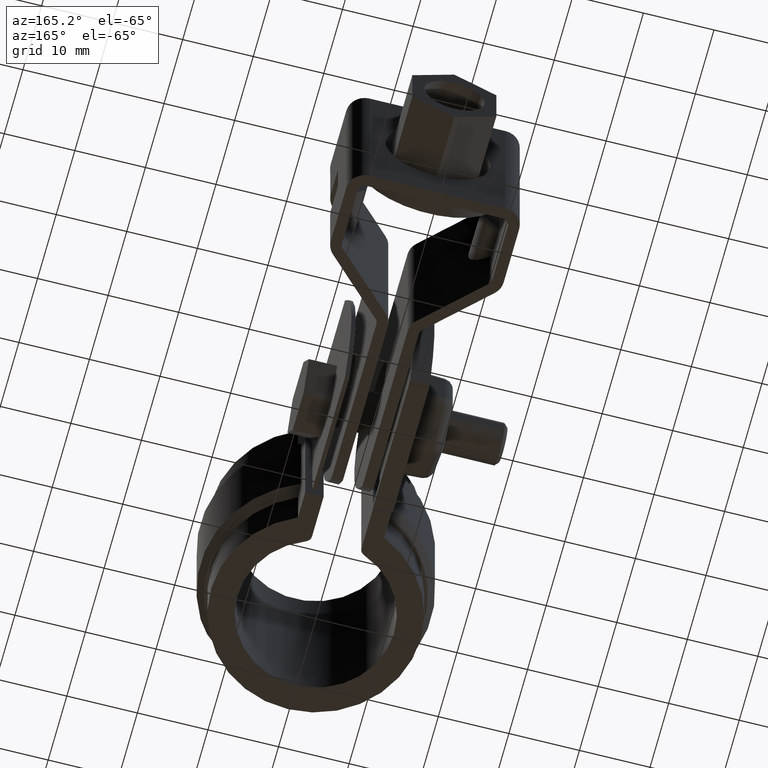
[diagram: clean part render]
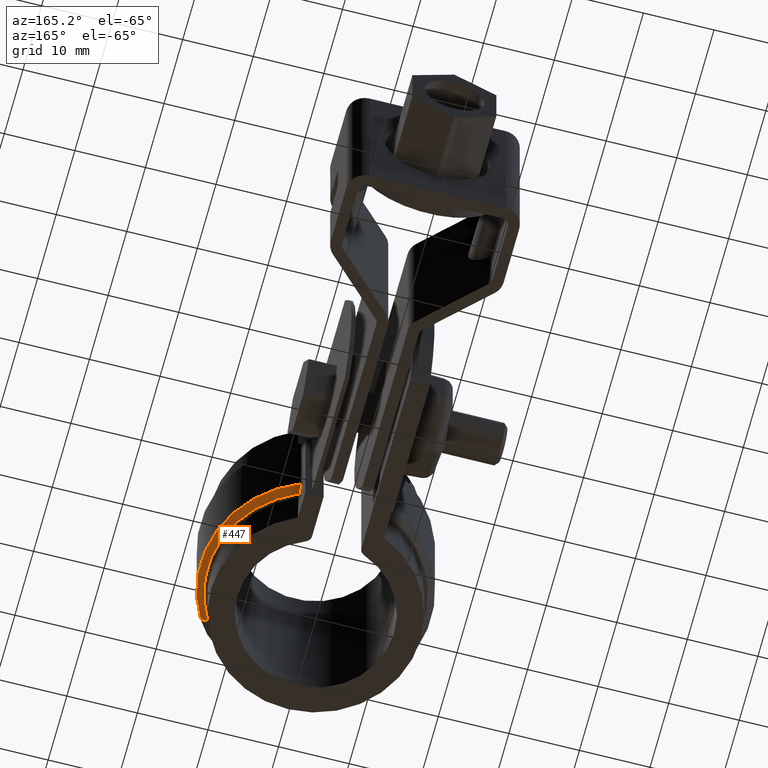
[diagram: same view with one face highlighted and labeled with its STEP entity id]
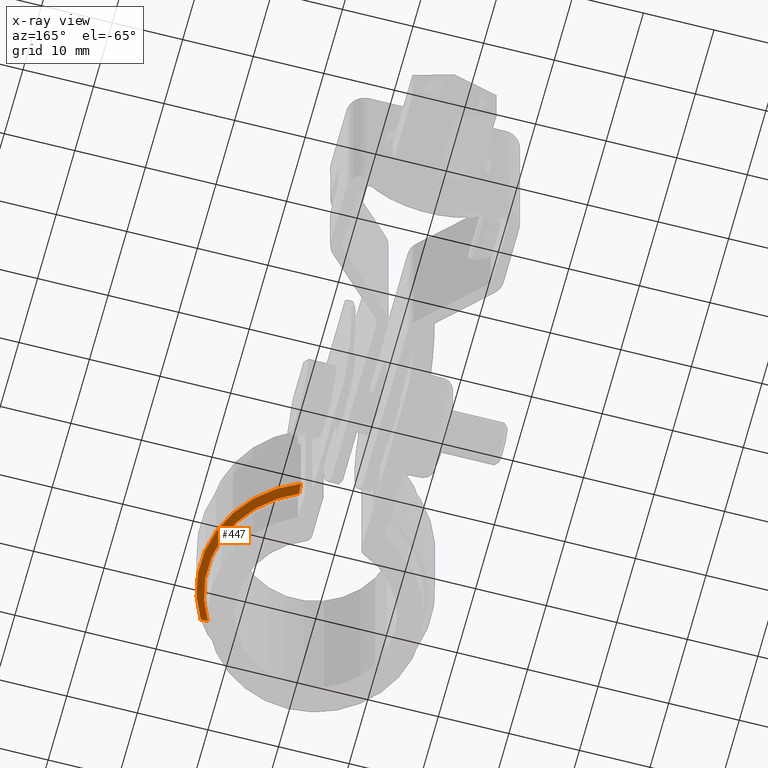
[diagram: x-ray of the same camera — body ghosted, the highlighted face saturated]
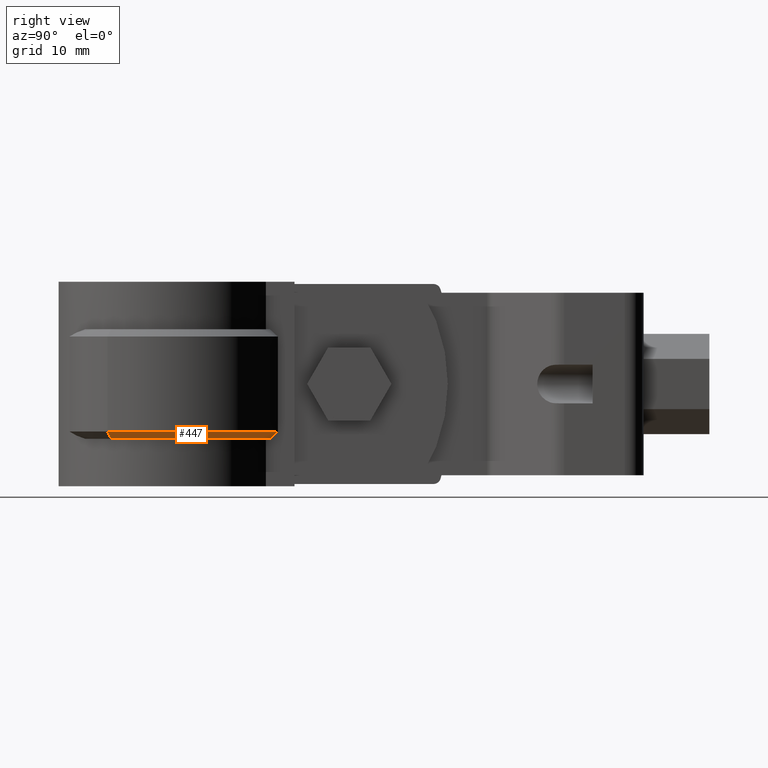
[diagram: same view with one face highlighted and labeled with its STEP entity id]
A machine part, auxiliary view. The second image highlights one B-rep face of the part: STEP entity #447.
The next image is the same camera in x-ray: the body ghosted, the highlighted face saturated — about 0% of this face is hidden behind the body in this view.
A second angle (right view) of the same face is appended — the face is thin or edge-on in the first view.
In plain terms, the highlighted conical surface has half-angle 45 deg.
Its self-contained STEP definition (entity closure, byte-faithful):
#447 = ADVANCED_FACE( '', ( #865 ), #866, .T. );
#865 = FACE_OUTER_BOUND( '', #1949, .T. );
#866 = CONICAL_SURFACE( '', #1950, 15.3550000000000, 0.785398163397449 );
#1949 = EDGE_LOOP( '', ( #4306, #4307, #4308, #4309 ) );
#1950 = AXIS2_PLACEMENT_3D( '', #4310, #4311, #4312 );
#4306 = ORIENTED_EDGE( '', *, *, #6595, .F. );
#4307 = ORIENTED_EDGE( '', *, *, #6596, .F. );
#4308 = ORIENTED_EDGE( '', *, *, #6597, .F. );
#4309 = ORIENTED_EDGE( '', *, *, #6598, .F. );
#4310 = CARTESIAN_POINT( '', ( 0.000000000000000, 0.000000000000000, -20.0000000000000 ) );
#4311 = DIRECTION( '', ( 0.000000000000000, 0.000000000000000, 1.00000000000000 ) );
#4312 = DIRECTION( '', ( 1.00000000000000, 0.000000000000000, 0.000000000000000 ) );
#6595 = EDGE_CURVE( '', #7717, #7718, #7719, .T. );
#6596 = EDGE_CURVE( '', #7720, #7717, #7721, .T. );
#6597 = EDGE_CURVE( '', #7722, #7720, #7723, .T. );
#6598 = EDGE_CURVE( '', #7718, #7722, #7724, .F. );
#7717 = VERTEX_POINT( '', #10695 );
#7718 = VERTEX_POINT( '', #10696 );
#7719 = B_SPLINE_CURVE_WITH_KNOTS( '', 3, ( #10697, #10698, #10699, #10700 ), .UNSPECIFIED., .F., .F., ( 4, 4 ), ( 0.000000000000000, 0.00147444161299851 ), .UNSPECIFIED. );
#7720 = VERTEX_POINT( '', #10701 );
#7721 = CIRCLE( '', #10702, 16.3550000000000 );
#7722 = VERTEX_POINT( '', #10703 );
#7723 = LINE( '', #10704, #10705 );
#7724 = CIRCLE( '', #10706, 15.3550000000000 );
#10695 = CARTESIAN_POINT( '', ( 6.10000000000001, 15.1748484341690, -19.0000000000000 ) );
#10696 = CARTESIAN_POINT( '', ( 6.10000000000001, 14.0913457483663, -20.0000000000000 ) );
#10697 = CARTESIAN_POINT( '', ( 6.10000000000001, 15.1748484341690, -19.0000000000000 ) );
#10698 = CARTESIAN_POINT( '', ( 6.10000000000001, 14.8145635994486, -19.3342872369313 ) );
#10699 = CARTESIAN_POINT( '', ( 6.10000000000001, 14.4534554887810, -19.6676904232475 ) );
#10700 = CARTESIAN_POINT( '', ( 6.10000000000001, 14.0913457483663, -20.0000000000000 ) );
#10701 = CARTESIAN_POINT( '', ( 14.1597412067696, -8.18460469157254, -19.0000000000000 ) );
#10702 = AXIS2_PLACEMENT_3D( '', #12622, #12623, #12624 );
#10703 = CARTESIAN_POINT( '', ( 13.2939667520604, -7.68417028670721, -20.0000000000000 ) );
#10704 = CARTESIAN_POINT( '', ( 13.2939667520604, -7.68417028670721, -20.0000000000000 ) );
#10705 = VECTOR( '', #12625, 1000.00000000000 );
#10706 = AXIS2_PLACEMENT_3D( '', #12626, #12627, #12628 );
#12622 = CARTESIAN_POINT( '', ( 0.000000000000000, 0.000000000000000, -19.0000000000000 ) );
#12623 = DIRECTION( '', ( 0.000000000000000, 0.000000000000000, 1.00000000000000 ) );
#12624 = DIRECTION( '', ( 1.00000000000000, 0.000000000000000, 0.000000000000000 ) );
#12625 = DIRECTION( '', ( 0.612194987902988, -0.353860561219333, 0.707106781186547 ) );
#12626 = CARTESIAN_POINT( '', ( 0.000000000000000, 0.000000000000000, -20.0000000000000 ) );
#12627 = DIRECTION( '', ( 0.000000000000000, 0.000000000000000, 1.00000000000000 ) );
#12628 = DIRECTION( '', ( 1.00000000000000, 0.000000000000000, 0.000000000000000 ) );